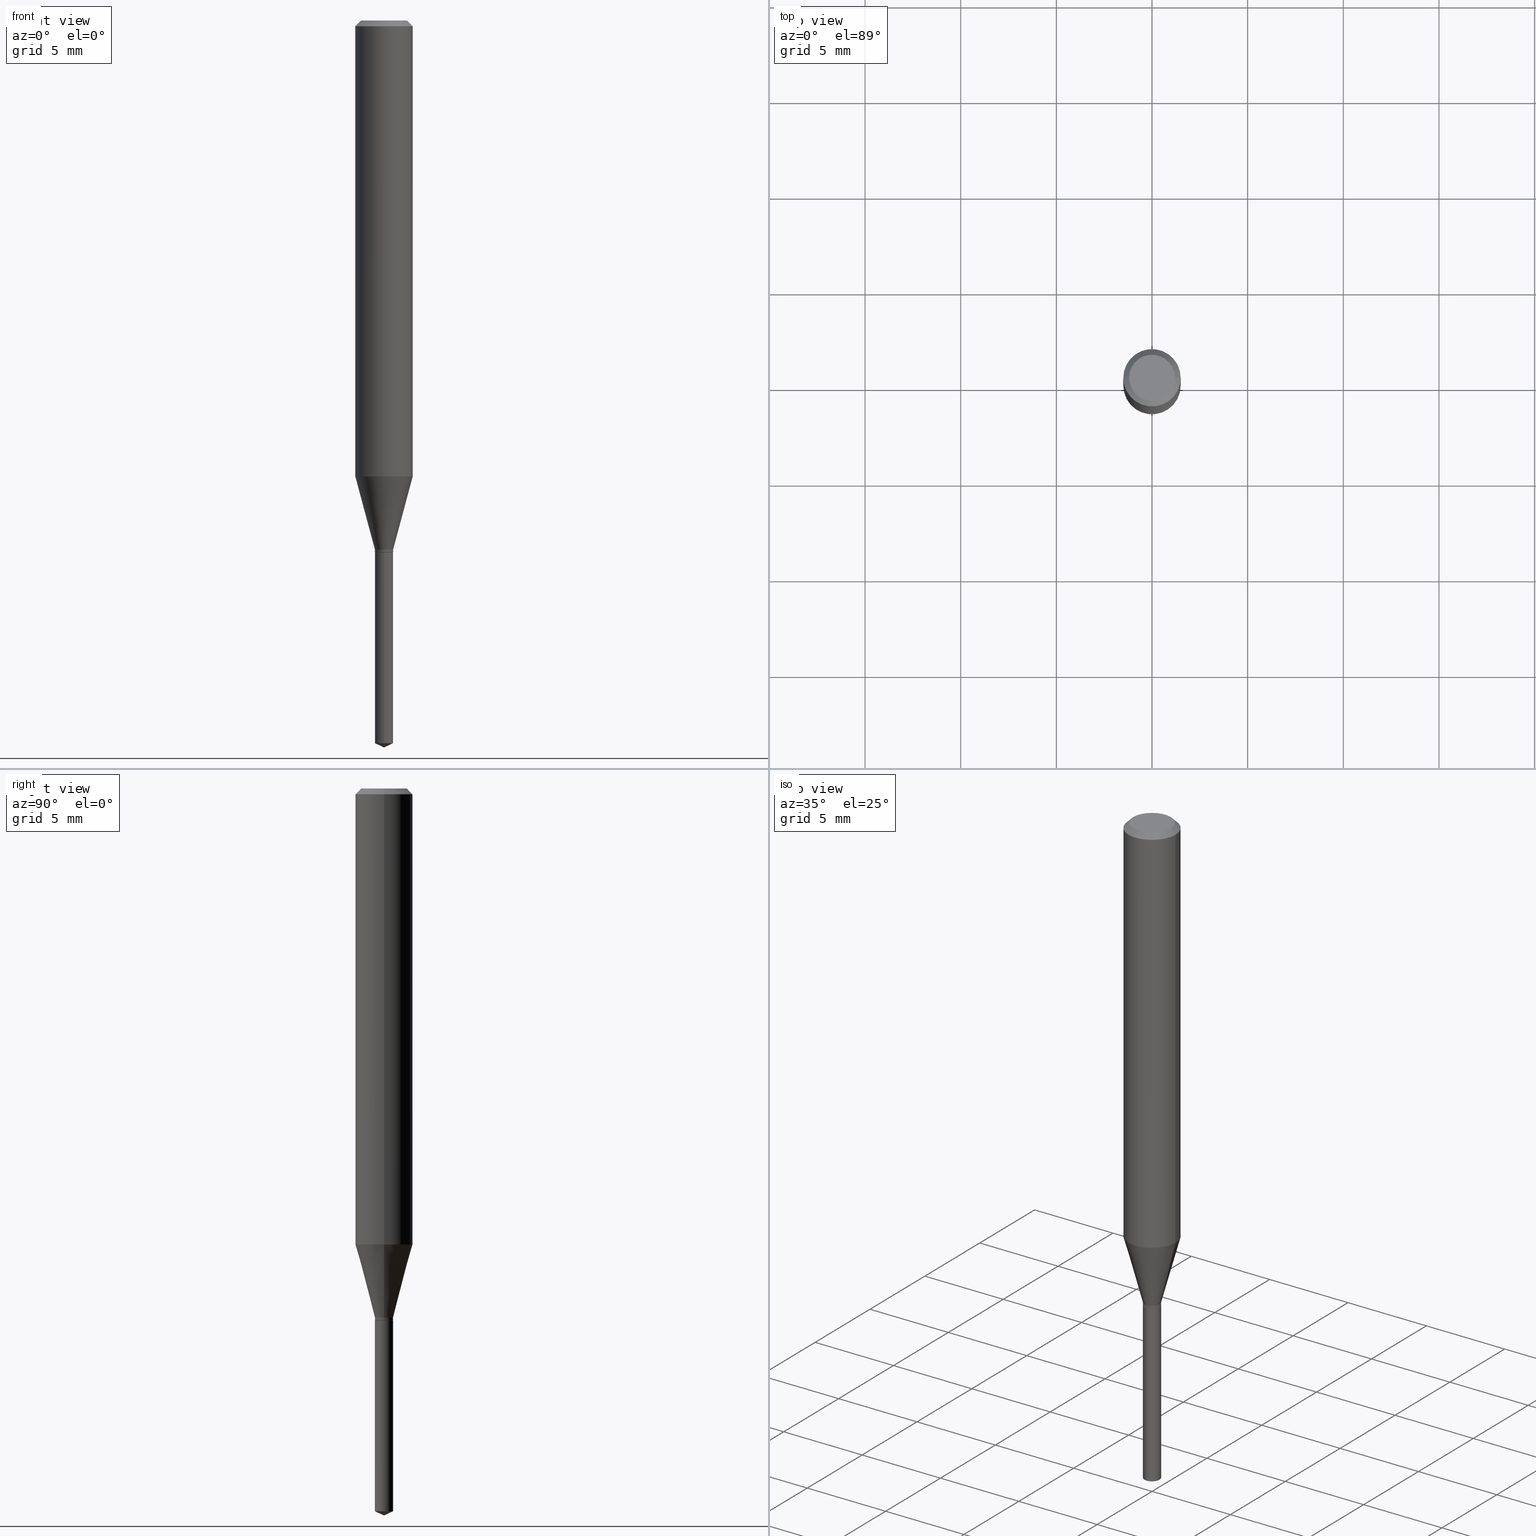
[diagram: canonical four-view strip — front | top / right | iso, engineering-drawing reading convention]
A machine part, canonical four-view strip (front | top / right | iso — engineering-drawing reading convention). The complete STEP part file that produces these views, byte-faithful:
ISO-10303-21;
HEADER;
FILE_DESCRIPTION (( 'STEP AP203' ),
    '1' );
FILE_NAME ('07474.STEP',
    '2024-04-23T21:50:55',
    ( '' ),
    ( '' ),
    'SwSTEP 2.0',
    'SolidWorks 2023',
    '' );
FILE_SCHEMA (( 'CONFIG_CONTROL_DESIGN' ));
ENDSEC;

DATA;
#1 = CONICAL_SURFACE ( 'NONE', #235, 0.05904999999999999832, 0.7853981633974452814 ) ;
#2 = EDGE_CURVE ( 'NONE', #237, #326, #397, .T. ) ;
#3 = APPROVAL_STATUS ( 'not_yet_approved' ) ;
#4 = CARTESIAN_POINT ( 'NONE',  ( 3.658668015054778287E-29, -5.223602213574301462E-15, -1.496099999999999985 ) ) ;
#5 = EDGE_CURVE ( 'NONE', #351, #132, #253, .T. ) ;
#6 = CARTESIAN_POINT ( 'NONE',  ( -1.305814020727064035E-16, -0.01870000000000382467, -1.094499999999999806 ) ) ;
#7 = ORIENTED_EDGE ( 'NONE', *, *, #121, .F. ) ;
#8 = CARTESIAN_POINT ( 'NONE',  ( -0.04724000000000000421, 3.504923541997677355E-16, -3.380025165670481712E-19 ) ) ;
#9 = CC_DESIGN_PERSON_AND_ORGANIZATION_ASSIGNMENT ( #441, #444, ( #412 ) ) ;
#10 = DIRECTION ( 'NONE',  ( -6.982962677686266711E-15, -1.000000000000000000, 3.520397390770453475E-15 ) ) ;
#11 = VERTEX_POINT ( 'NONE', #477 ) ;
#12 = EDGE_LOOP ( 'NONE', ( #140, #388 ) ) ;
#13 = AXIS2_PLACEMENT_3D ( 'NONE', #75, #320, #474 ) ;
#14 = ORIENTED_EDGE ( 'NONE', *, *, #56, .F. ) ;
#15 = ORIENTED_EDGE ( 'NONE', *, *, #152, .T. ) ;
#16 = VERTEX_POINT ( 'NONE', #368 ) ;
#17 = ORIENTED_EDGE ( 'NONE', *, *, #454, .T. ) ;
#18 = EDGE_CURVE ( 'NONE', #439, #326, #403, .T. ) ;
#19 = ORIENTED_EDGE ( 'NONE', *, *, #42, .T. ) ;
#20 = DIRECTION ( 'NONE',  ( 1.000000000000000000, -6.982962677686274599E-15, 0.000000000000000000 ) ) ;
#21 = ORIENTED_EDGE ( 'NONE', *, *, #56, .T. ) ;
#22 = VERTEX_POINT ( 'NONE', #27 ) ;
#23 =( NAMED_UNIT ( * ) SI_UNIT ( $, .STERADIAN. ) SOLID_ANGLE_UNIT ( ) );
#24 = DIRECTION ( 'NONE',  ( -2.445468806185136597E-29, 3.491481338843145583E-15, 1.000000000000000000 ) ) ;
#25 = FACE_OUTER_BOUND ( 'NONE', #12, .T. ) ;
#26 = ORIENTED_EDGE ( 'NONE', *, *, #296, .T. ) ;
#27 = CARTESIAN_POINT ( 'NONE',  ( 3.658667988020872822E-29, -5.223602213574301462E-15, -1.496099999999999985 ) ) ;
#28 = CC_DESIGN_PERSON_AND_ORGANIZATION_ASSIGNMENT ( #291, #73, ( #125 ) ) ;
#29 = DATE_AND_TIME ( #376, #318 ) ;
#30 = CIRCLE ( 'NONE', #271, 0.01870000000000000134 ) ;
#31 = CARTESIAN_POINT ( 'NONE',  ( 0.000000000000000000, 0.000000000000000000, 0.000000000000000000 ) ) ;
#32 = ORIENTED_EDGE ( 'NONE', *, *, #454, .F. ) ;
#33 = DATE_AND_TIME ( #107, #64 ) ;
#34 = CARTESIAN_POINT ( 'NONE',  ( -0.05904999999999999832, -1.239090694261562746E-15, -0.01181000000000006871 ) ) ;
#35 = EDGE_CURVE ( 'NONE', #357, #471, #332, .T. ) ;
#36 = FACE_OUTER_BOUND ( 'NONE', #325, .T. ) ;
#37 = CARTESIAN_POINT ( 'NONE',  ( 0.000000000000000000, 0.000000000000000000, 0.000000000000000000 ) ) ;
#38 = AXIS2_PLACEMENT_3D ( 'NONE', #467, #362, #20 ) ;
#39 = AXIS2_PLACEMENT_3D ( 'NONE', #31, #177, #67 ) ;
#40 = MANIFOLD_SOLID_BREP ( 'Body-Move/Copy2[1]', #187 ) ;
#41 = DIRECTION ( 'NONE',  ( 1.000000000000000000, -6.982962677686267499E-15, 0.000000000000000000 ) ) ;
#42 = EDGE_CURVE ( 'NONE', #326, #237, #52, .T. ) ;
#43 = CARTESIAN_POINT ( 'NONE',  ( -0.01870000000000000134, -3.677905815693212907E-15, -1.088899999999999979 ) ) ;
#44 = AXIS2_PLACEMENT_3D ( 'NONE', #126, #487, #41 ) ;
#45 = CARTESIAN_POINT ( 'NONE',  ( -9.261968845786000133E-28, 1.322362114038720264E-13, 37.87397874015748300 ) ) ;
#46 = EDGE_LOOP ( 'NONE', ( #394, #367, #385, #315 ) ) ;
#47 = DIRECTION ( 'NONE',  ( 1.000000000000000000, -6.982962677686266711E-15, 4.876176775795935793E-29 ) ) ;
#48 = ADVANCED_FACE ( 'NONE', ( #98 ), #316, .T. ) ;
#49 = DIRECTION ( 'NONE',  ( -2.445468806185136597E-29, 3.491481338843145583E-15, 1.000000000000000000 ) ) ;
#50 = DIRECTION ( 'NONE',  ( 2.445468806185136597E-29, -3.491481338843145583E-15, -1.000000000000000000 ) ) ;
#51 = EDGE_LOOP ( 'NONE', ( #267, #19, #130, #247 ) ) ;
#52 = CIRCLE ( 'NONE', #354, 0.01870000000000000134 ) ;
#53 = VECTOR ( 'NONE', #236, 39.37007874015747433 ) ;
#54 = ORIENTED_EDGE ( 'NONE', *, *, #5, .F. ) ;
#55 = CYLINDRICAL_SURFACE ( 'NONE', #94, 0.01870000000000000134 ) ;
#56 = EDGE_CURVE ( 'NONE', #132, #351, #163, .T. ) ;
#57 = VERTEX_POINT ( 'NONE', #108 ) ;
#58 =( LENGTH_UNIT ( ) NAMED_UNIT ( * ) SI_UNIT ( $, .METRE. ) );
#59 = ORIENTED_EDGE ( 'NONE', *, *, #442, .T. ) ;
#60 = APPROVAL ( #489, 'UNSPECIFIED' ) ;
#61 = ORIENTED_EDGE ( 'NONE', *, *, #188, .T. ) ;
#62 = AXIS2_PLACEMENT_3D ( 'NONE', #171, #374, #279 ) ;
#63 = CONICAL_SURFACE ( 'NONE', #339, 0.01820000000000000090, 0.7853981633974119747 ) ;
#64 = LOCAL_TIME ( 17, 50, 55.00000000000000000, #216 ) ;
#65 = VERTEX_POINT ( 'NONE', #77 ) ;
#66 = DIRECTION ( 'NONE',  ( 2.445470214571801836E-29, -3.491479321953280158E-15, -1.000000000000000000 ) ) ;
#67 = DIRECTION ( 'NONE',  ( 1.000000000000000000, -6.982962677686266711E-15, 4.876176775795935793E-29 ) ) ;
#68 = EDGE_LOOP ( 'NONE', ( #160, #196, #59, #204 ) ) ;
#69 = VERTEX_POINT ( 'NONE', #410 ) ;
#70 =( NAMED_UNIT ( * ) PLANE_ANGLE_UNIT ( ) SI_UNIT ( $, .RADIAN. ) );
#71 = FACE_OUTER_BOUND ( 'NONE', #51, .T. ) ;
#72 = EDGE_LOOP ( 'NONE', ( #427, #14, #124, #464 ) ) ;
#73 = PERSON_AND_ORGANIZATION_ROLE ( 'design_supplier' ) ;
#74 = AXIS2_PLACEMENT_3D ( 'NONE', #194, #272, #119 ) ;
#75 = CARTESIAN_POINT ( 'NONE',  ( 3.637342060700270399E-29, -5.193158884747879625E-15, -1.487380046792501576 ) ) ;
#76 = EDGE_CURVE ( 'NONE', #11, #65, #360, .T. ) ;
#77 = CARTESIAN_POINT ( 'NONE',  ( -1.305814020726967892E-16, -0.01870000000000519164, -1.487380046792501576 ) ) ;
#78 = PERSON_AND_ORGANIZATION ( #428, #371 ) ;
#79 = CARTESIAN_POINT ( 'NONE',  ( 0.05904999999999999832, -4.535783407291118600E-16, -0.01181000000000006871 ) ) ;
#80 = ADVANCED_FACE ( 'NONE', ( #25 ), #136, .F. ) ;
#81 = DIRECTION ( 'NONE',  ( -2.445470214571802116E-29, 3.491479321953280158E-15, 1.000000000000000000 ) ) ;
#82 = CARTESIAN_POINT ( 'NONE',  ( 0.000000000000000000, 0.000000000000000000, 0.000000000000000000 ) ) ;
#83 = CARTESIAN_POINT ( 'NONE',  ( 2.888098660104663328E-31, -4.123439461173779030E-17, -0.01181000000000006871 ) ) ;
#84 = AXIS2_PLACEMENT_3D ( 'NONE', #206, #49, #266 ) ;
#85 = CONICAL_SURFACE ( 'NONE', #345, 0.01870000000000000134, 0.2617993877991500740 ) ;
#86 = CIRCLE ( 'NONE', #200, 0.01820000000000000090 ) ;
#87 = DIRECTION ( 'NONE',  ( -2.445468806185136597E-29, 3.491481338843145583E-15, 1.000000000000000000 ) ) ;
#88 = EDGE_CURVE ( 'NONE', #357, #211, #115, .T. ) ;
#89 = CARTESIAN_POINT ( 'NONE',  ( -0.05904999999999999832, 3.711095515056362547E-16, -0.01181000000000006871 ) ) ;
#90 = VERTEX_POINT ( 'NONE', #181 ) ;
#91 = UNCERTAINTY_MEASURE_WITH_UNIT (LENGTH_MEASURE( 1.000000000000000082E-05 ), #415, 'distance_accuracy_value', 'NONE');
#92 = ORIENTED_EDGE ( 'NONE', *, *, #76, .F. ) ;
#93 = EDGE_CURVE ( 'NONE', #237, #357, #404, .T. ) ;
#94 = AXIS2_PLACEMENT_3D ( 'NONE', #203, #334, #112 ) ;
#95 = ADVANCED_FACE ( 'NONE', ( #167 ), #416, .T. ) ;
#96 = ORIENTED_EDGE ( 'NONE', *, *, #284, .F. ) ;
#97 = CARTESIAN_POINT ( 'NONE',  ( 0.05904999999999999832, -4.463468013801466955E-16, -0.01181000000000006871 ) ) ;
#98 = FACE_OUTER_BOUND ( 'NONE', #440, .T. ) ;
#99 = DIRECTION ( 'NONE',  ( 1.000000000000000000, -6.982962677686273810E-15, 0.000000000000000000 ) ) ;
#100 = CARTESIAN_POINT ( 'NONE',  ( 8.265746106709734507E-48, -1.180129479067563789E-33, -3.380025165646692144E-19 ) ) ;
#101 = CC_DESIGN_APPROVAL ( #395, ( #299 ) ) ;
#102 = CYLINDRICAL_SURFACE ( 'NONE', #424, 0.01870000000000000134 ) ;
#103 = CARTESIAN_POINT ( 'NONE',  ( 2.662870983054994996E-29, -3.801874029866301144E-15, -1.088899999999999979 ) ) ;
#104 = EDGE_LOOP ( 'NONE', ( #372, #390, #92 ) ) ;
#105 = CALENDAR_DATE ( 2024, 23, 4 ) ;
#106 = CARTESIAN_POINT ( 'NONE',  ( 0.01820000000000000090, -3.948516246097712966E-15, -1.094499999999999806 ) ) ;
#107 = CALENDAR_DATE ( 2024, 23, 4 ) ;
#108 = CARTESIAN_POINT ( 'NONE',  ( 1.328714915871751552E-16, 0.01869999999999617801, -1.094499999999999806 ) ) ;
#109 = PERSON_AND_ORGANIZATION ( #428, #371 ) ;
#110 = CIRCLE ( 'NONE', #317, 0.01820000000000000090 ) ;
#111 = COORDINATED_UNIVERSAL_TIME_OFFSET ( 5, 0, .BEHIND. ) ;
#112 = DIRECTION ( 'NONE',  ( -6.982962677686265922E-15, -1.000000000000000000, 0.000000000000000000 ) ) ;
#113 = COORDINATED_UNIVERSAL_TIME_OFFSET ( 5, 0, .BEHIND. ) ;
#114 = LINE ( 'NONE', #4, #391 ) ;
#115 = CIRCLE ( 'NONE', #62, 0.01870000000000000134 ) ;
#116 = AXIS2_PLACEMENT_3D ( 'NONE', #230, #426, #462 ) ;
#117 = ADVANCED_FACE ( 'NONE', ( #438 ), #102, .T. ) ;
#118 =( GEOMETRIC_REPRESENTATION_CONTEXT ( 3 ) GLOBAL_UNCERTAINTY_ASSIGNED_CONTEXT ( ( #91 ) ) GLOBAL_UNIT_ASSIGNED_CONTEXT ( ( #415, #70, #23 ) ) REPRESENTATION_CONTEXT ( 'NONE', 'WORKASPACE' ) );
#119 = DIRECTION ( 'NONE',  ( 1.000000000000000000, -6.982962677686267499E-15, 0.000000000000000000 ) ) ;
#120 = FACE_OUTER_BOUND ( 'NONE', #68, .T. ) ;
#121 = EDGE_CURVE ( 'NONE', #16, #237, #443, .T. ) ;
#122 = ADVANCED_FACE ( 'NONE', ( #71 ), #370, .T. ) ;
#123 = DIRECTION ( 'NONE',  ( -0.7071067811865453523, 2.468850131082234184E-15, -0.7071067811865496822 ) ) ;
#124 = ORIENTED_EDGE ( 'NONE', *, *, #222, .T. ) ;
#125 = PRODUCT_DEFINITION_FORMATION_WITH_SPECIFIED_SOURCE ( 'ANY', '', #412, .NOT_KNOWN. ) ;
#126 = CARTESIAN_POINT ( 'NONE',  ( 2.294612114893132862E-29, -3.276097964844067539E-15, -0.9383117499145957607 ) ) ;
#127 = FACE_OUTER_BOUND ( 'NONE', #159, .T. ) ;
#128 = ORIENTED_EDGE ( 'NONE', *, *, #465, .T. ) ;
#129 = ADVANCED_FACE ( 'NONE', ( #421 ), #1, .T. ) ;
#130 = ORIENTED_EDGE ( 'NONE', *, *, #93, .T. ) ;
#131 = EDGE_CURVE ( 'NONE', #311, #476, #228, .T. ) ;
#132 = VERTEX_POINT ( 'NONE', #8 ) ;
#133 = VECTOR ( 'NONE', #202, 39.37007874015748143 ) ;
#134 = ORIENTED_EDGE ( 'NONE', *, *, #337, .F. ) ;
#135 = DIRECTION ( 'NONE',  ( 0.7071067811865453523, -7.319954787623248157E-15, -0.7071067811865496822 ) ) ;
#136 = PLANE ( 'NONE',  #423 ) ;
#137 = ORIENTED_EDGE ( 'NONE', *, *, #149, .F. ) ;
#138 = DIRECTION ( 'NONE',  ( -6.328713451373374901E-15, -0.9063077870366492705, 0.4226182617407009956 ) ) ;
#139 = DIRECTION ( 'NONE',  ( -1.000000000000000000, 6.982962677686266711E-15, 0.000000000000000000 ) ) ;
#140 = ORIENTED_EDGE ( 'NONE', *, *, #229, .T. ) ;
#141 = ORIENTED_EDGE ( 'NONE', *, *, #152, .F. ) ;
#142 = AXIS2_PLACEMENT_3D ( 'NONE', #45, #305, #10 ) ;
#143 = DIRECTION ( 'NONE',  ( 1.000000000000000000, 0.000000000000000000, 0.000000000000000000 ) ) ;
#144 = LINE ( 'NONE', #286, #53 ) ;
#145 = CARTESIAN_POINT ( 'NONE',  ( 0.01870000000000000134, -3.932455431939034345E-15, -1.088899999999999979 ) ) ;
#146 = DATE_AND_TIME ( #445, #481 ) ;
#147 = FACE_OUTER_BOUND ( 'NONE', #468, .T. ) ;
#148 = CIRCLE ( 'NONE', #44, 0.05905000000000010935 ) ;
#149 = EDGE_CURVE ( 'NONE', #57, #69, #312, .T. ) ;
#150 = DIRECTION ( 'NONE',  ( -2.445470214571802396E-29, 3.491479321953280158E-15, 1.000000000000000000 ) ) ;
#151 = AXIS2_PLACEMENT_3D ( 'NONE', #82, #348, #47 ) ;
#152 = EDGE_CURVE ( 'NONE', #65, #69, #453, .T. ) ;
#153 = DIRECTION ( 'NONE',  ( -6.982962677686265922E-15, -1.000000000000000000, 0.000000000000000000 ) ) ;
#154 = ORIENTED_EDGE ( 'NONE', *, *, #88, .T. ) ;
#155 = PRODUCT_RELATED_PRODUCT_CATEGORY ( 'detail', '', ( #412 ) ) ;
#156 = CARTESIAN_POINT ( 'NONE',  ( 2.676565608369631794E-29, -3.821426325363822773E-15, -1.094499999999999806 ) ) ;
#157 = AXIS2_PLACEMENT_3D ( 'NONE', #103, #287, #331 ) ;
#158 = DIRECTION ( 'NONE',  ( -2.445470214571802396E-29, 3.491479321953280158E-15, 1.000000000000000000 ) ) ;
#159 = EDGE_LOOP ( 'NONE', ( #154, #26, #32, #306 ) ) ;
#160 = ORIENTED_EDGE ( 'NONE', *, *, #379, .F. ) ;
#161 = CC_DESIGN_PERSON_AND_ORGANIZATION_ASSIGNMENT ( #258, #248, ( #125 ) ) ;
#162 = LINE ( 'NONE', #97, #479 ) ;
#163 = CIRCLE ( 'NONE', #227, 0.04724000000000000421 ) ;
#164 = VECTOR ( 'NONE', #150, 39.37007874015748143 ) ;
#165 = DIRECTION ( 'NONE',  ( -2.445468806185136597E-29, 3.491481338843145583E-15, 1.000000000000000000 ) ) ;
#166 = LINE ( 'NONE', #322, #461 ) ;
#167 = FACE_OUTER_BOUND ( 'NONE', #313, .T. ) ;
#168 = ORIENTED_EDGE ( 'NONE', *, *, #42, .F. ) ;
#169 = APPLICATION_PROTOCOL_DEFINITION ( 'international standard', 'config_control_design', 1994, #411 ) ;
#170 = CARTESIAN_POINT ( 'NONE',  ( 3.637342060700270399E-29, -5.193158884747879625E-15, -1.487380046792501576 ) ) ;
#171 = CARTESIAN_POINT ( 'NONE',  ( 2.662870983054994996E-29, -3.801874029866301144E-15, -1.088899999999999979 ) ) ;
#172 = AXIS2_PLACEMENT_3D ( 'NONE', #250, #323, #139 ) ;
#173 = CARTESIAN_POINT ( 'NONE',  ( 0.01870000000000000134, -3.932455431939034345E-15, -1.088899999999999979 ) ) ;
#174 = AXIS2_PLACEMENT_3D ( 'NONE', #37, #478, #143 ) ;
#175 = ADVANCED_FACE ( 'NONE', ( #458 ), #265, .T. ) ;
#176 = LENGTH_MEASURE_WITH_UNIT ( LENGTH_MEASURE( 0.02539999999999999897 ), #58 );
#177 = DIRECTION ( 'NONE',  ( -2.445468806185136597E-29, 3.491481338843145583E-15, 1.000000000000000000 ) ) ;
#178 = ORIENTED_EDGE ( 'NONE', *, *, #275, .F. ) ;
#179 = APPROVAL_DATE_TIME ( #146, #60 ) ;
#180 = DIRECTION ( 'NONE',  ( -2.445468806185136597E-29, 3.491481338843145583E-15, 1.000000000000000000 ) ) ;
#181 = CARTESIAN_POINT ( 'NONE',  ( -0.05905000000000010935, -2.856522479377728046E-15, -0.9383117499145957607 ) ) ;
#182 = PERSON_AND_ORGANIZATION ( #428, #371 ) ;
#183 = APPROVAL_ROLE ( '' ) ;
#184 = CC_DESIGN_APPROVAL ( #241, ( #361 ) ) ;
#185 = CARTESIAN_POINT ( 'NONE',  ( 0.05905000000000005383, -4.123439461173744271E-16, 2.879382386107502672E-30 ) ) ;
#186 = CARTESIAN_POINT ( 'NONE',  ( 8.265746106709734507E-48, -1.180129479067563789E-33, -3.380025165646692144E-19 ) ) ;
#187 = CLOSED_SHELL ( 'NONE', ( #308, #433, #218, #117, #80 ) ) ;
#188 = EDGE_CURVE ( 'NONE', #476, #311, #205, .T. ) ;
#189 = ORIENTED_EDGE ( 'NONE', *, *, #398, .F. ) ;
#190 = CONICAL_SURFACE ( 'NONE', #470, 84.42940631927434936, 1.134464013796316006 ) ;
#191 = LINE ( 'NONE', #89, #356 ) ;
#192 = ORIENTED_EDGE ( 'NONE', *, *, #398, .T. ) ;
#193 = CC_DESIGN_DATE_AND_TIME_ASSIGNMENT ( #413, #340, ( #361 ) ) ;
#194 = CARTESIAN_POINT ( 'NONE',  ( 2.294612114893132862E-29, -3.276097964844067539E-15, -0.9383117499145957607 ) ) ;
#195 = DIRECTION ( 'NONE',  ( 1.000000000000000000, -6.982962677686266711E-15, 0.000000000000000000 ) ) ;
#196 = ORIENTED_EDGE ( 'NONE', *, *, #429, .T. ) ;
#197 = ORIENTED_EDGE ( 'NONE', *, *, #18, .F. ) ;
#198 = VECTOR ( 'NONE', #282, 39.37007874015748143 ) ;
#199 = CONICAL_SURFACE ( 'NONE', #301, 0.01870000000000000134, 0.2617993877991500740 ) ;
#200 = AXIS2_PLACEMENT_3D ( 'NONE', #251, #260, #259 ) ;
#201 = EDGE_CURVE ( 'NONE', #326, #211, #382, .T. ) ;
#202 = DIRECTION ( 'NONE',  ( -2.445468806185136877E-29, 3.491481338843145188E-15, 1.000000000000000000 ) ) ;
#203 = CARTESIAN_POINT ( 'NONE',  ( 2.676565608369631794E-29, -3.821426325363822773E-15, -1.094499999999999806 ) ) ;
#204 = ORIENTED_EDGE ( 'NONE', *, *, #131, .F. ) ;
#205 = CIRCLE ( 'NONE', #262, 0.05904999999999999832 ) ;
#206 = CARTESIAN_POINT ( 'NONE',  ( 2.676565608369631794E-29, -3.821426325363822773E-15, -1.094499999999999806 ) ) ;
#207 = ORIENTED_EDGE ( 'NONE', *, *, #249, .T. ) ;
#208 = CARTESIAN_POINT ( 'NONE',  ( 0.01870000000000000134, -1.305814020727332001E-16, 9.118450570738400409E-31 ) ) ;
#209 = ORIENTED_EDGE ( 'NONE', *, *, #188, .F. ) ;
#210 = APPROVAL_ROLE ( '' ) ;
#211 = VERTEX_POINT ( 'NONE', #43 ) ;
#212 = EDGE_LOOP ( 'NONE', ( #21, #396 ) ) ;
#213 = PERSON_AND_ORGANIZATION ( #428, #371 ) ;
#214 = ORIENTED_EDGE ( 'NONE', *, *, #442, .F. ) ;
#215 = CIRCLE ( 'NONE', #378, 0.01870000000000000134 ) ;
#216 = COORDINATED_UNIVERSAL_TIME_OFFSET ( 5, 0, .BEHIND. ) ;
#217 = CARTESIAN_POINT ( 'NONE',  ( 2.676565608369631794E-29, -3.821426325363822773E-15, -1.094499999999999806 ) ) ;
#218 = ADVANCED_FACE ( 'NONE', ( #347 ), #399, .T. ) ;
#219 = AXIS2_PLACEMENT_3D ( 'NONE', #446, #324, #246 ) ;
#220 = DIMENSIONAL_EXPONENTS ( 1.000000000000000000, 0.000000000000000000, 0.000000000000000000, 0.000000000000000000, 0.000000000000000000, 0.000000000000000000, 0.000000000000000000 ) ;
#221 = DIRECTION ( 'NONE',  ( -2.445468806185136597E-29, 3.491481338843145583E-15, 1.000000000000000000 ) ) ;
#222 = EDGE_CURVE ( 'NONE', #132, #311, #191, .T. ) ;
#223 = DIRECTION ( 'NONE',  ( 1.000000000000000000, -6.982962677686266711E-15, 4.876176775795935793E-29 ) ) ;
#224 = CARTESIAN_POINT ( 'NONE',  ( 0.000000000000000000, 0.000000000000000000, 0.000000000000000000 ) ) ;
#225 = DIRECTION ( 'NONE',  ( -6.982962677686266711E-15, -1.000000000000000000, 3.520397390770453475E-15 ) ) ;
#226 = DIRECTION ( 'NONE',  ( -2.445470214571802116E-29, 3.491479321953280158E-15, 1.000000000000000000 ) ) ;
#227 = AXIS2_PLACEMENT_3D ( 'NONE', #186, #307, #435 ) ;
#228 = CIRCLE ( 'NONE', #274, 0.05904999999999999832 ) ;
#229 = EDGE_CURVE ( 'NONE', #69, #57, #30, .T. ) ;
#230 = CARTESIAN_POINT ( 'NONE',  ( 4.132873053354867254E-48, -5.900647395337818946E-34, -1.690012582823346072E-19 ) ) ;
#231 = ORIENTED_EDGE ( 'NONE', *, *, #93, .F. ) ;
#232 = ADVANCED_FACE ( 'NONE', ( #127 ), #85, .T. ) ;
#233 = DIRECTION ( 'NONE',  ( 1.000000000000000000, -6.982962677686274599E-15, 0.000000000000000000 ) ) ;
#234 = CARTESIAN_POINT ( 'NONE',  ( -0.05905000000000005383, 4.195754854663395423E-16, -2.904631170795524694E-30 ) ) ;
#235 = AXIS2_PLACEMENT_3D ( 'NONE', #83, #50, #302 ) ;
#236 = DIRECTION ( 'NONE',  ( -0.2588190451025213501, 5.211531920934551042E-15, 0.9659258262890682012 ) ) ;
#237 = VERTEX_POINT ( 'NONE', #285 ) ;
#238 = ORIENTED_EDGE ( 'NONE', *, *, #201, .T. ) ;
#239 = ADVANCED_FACE ( 'NONE', ( #319 ), #199, .T. ) ;
#240 = ORIENTED_EDGE ( 'NONE', *, *, #337, .T. ) ;
#241 = APPROVAL ( #3, 'UNSPECIFIED' ) ;
#242 = CYLINDRICAL_SURFACE ( 'NONE', #39, 0.05905000000000005383 ) ;
#243 = DIRECTION ( 'NONE',  ( 1.000000000000000000, -6.982962677686266711E-15, 4.876185090822587894E-29 ) ) ;
#244 = CARTESIAN_POINT ( 'NONE',  ( 2.662870983054994996E-29, -3.801874029866301144E-15, -1.088899999999999979 ) ) ;
#245 = CARTESIAN_POINT ( 'NONE',  ( 2.676565608369631794E-29, -3.821426325363822773E-15, -1.094499999999999806 ) ) ;
#246 = DIRECTION ( 'NONE',  ( 1.000000000000000000, -6.982962677686265922E-15, 4.876176775795935793E-29 ) ) ;
#247 = ORIENTED_EDGE ( 'NONE', *, *, #358, .F. ) ;
#248 = PERSON_AND_ORGANIZATION_ROLE ( 'creator' ) ;
#249 = EDGE_CURVE ( 'NONE', #351, #476, #162, .T. ) ;
#250 = CARTESIAN_POINT ( 'NONE',  ( 2.888098660104663328E-31, -4.123439461173779030E-17, -0.01181000000000006871 ) ) ;
#251 = CARTESIAN_POINT ( 'NONE',  ( 2.676565608369631794E-29, -3.821426325363822773E-15, -1.094499999999999806 ) ) ;
#252 = COORDINATED_UNIVERSAL_TIME_OFFSET ( 5, 0, .BEHIND. ) ;
#253 = CIRCLE ( 'NONE', #261, 0.04724000000000000421 ) ;
#254 = CARTESIAN_POINT ( 'NONE',  ( 0.04724000000000000421, -3.852183633974369345E-16, -3.380025165621689721E-19 ) ) ;
#255 = AXIS2_PLACEMENT_3D ( 'NONE', #156, #226, #153 ) ;
#256 = DIRECTION ( 'NONE',  ( 6.439704144417030353E-15, 0.9063077870366521571, 0.4226182617406946673 ) ) ;
#257 = ADVANCED_FACE ( 'NONE', ( #278 ), #63, .T. ) ;
#258 = PERSON_AND_ORGANIZATION ( #428, #371 ) ;
#259 = DIRECTION ( 'NONE',  ( 1.000000000000000000, -6.982962677686273810E-15, 0.000000000000000000 ) ) ;
#260 = DIRECTION ( 'NONE',  ( -2.445468806185136597E-29, 3.491481338843145583E-15, 1.000000000000000000 ) ) ;
#261 = AXIS2_PLACEMENT_3D ( 'NONE', #100, #165, #243 ) ;
#262 = AXIS2_PLACEMENT_3D ( 'NONE', #344, #221, #383 ) ;
#263 = APPLICATION_CONTEXT ( 'configuration controlled 3d designs of mechanical parts and assemblies' ) ;
#264 = LOCAL_TIME ( 17, 50, 55.00000000000000000, #365 ) ;
#265 = CYLINDRICAL_SURFACE ( 'NONE', #417, 0.01870000000000000134 ) ;
#266 = DIRECTION ( 'NONE',  ( 1.000000000000000000, -6.982962677686273810E-15, 0.000000000000000000 ) ) ;
#267 = ORIENTED_EDGE ( 'NONE', *, *, #201, .F. ) ;
#268 = FACE_OUTER_BOUND ( 'NONE', #212, .T. ) ;
#269 = DIRECTION ( 'NONE',  ( -6.982962677686265922E-15, -1.000000000000000000, 0.000000000000000000 ) ) ;
#270 = ORIENTED_EDGE ( 'NONE', *, *, #2, .F. ) ;
#271 = AXIS2_PLACEMENT_3D ( 'NONE', #310, #448, #269 ) ;
#272 = DIRECTION ( 'NONE',  ( -2.445468806185136597E-29, 3.491481338843145583E-15, 1.000000000000000000 ) ) ;
#273 = ORIENTED_EDGE ( 'NONE', *, *, #379, .T. ) ;
#274 = AXIS2_PLACEMENT_3D ( 'NONE', #355, #349, #195 ) ;
#275 = EDGE_CURVE ( 'NONE', #22, #65, #166, .T. ) ;
#276 = ORIENTED_EDGE ( 'NONE', *, *, #121, .T. ) ;
#277 = DIRECTION ( 'NONE',  ( -2.445468806185136597E-29, 3.491481338843145583E-15, 1.000000000000000000 ) ) ;
#278 = FACE_OUTER_BOUND ( 'NONE', #393, .T. ) ;
#279 = DIRECTION ( 'NONE',  ( 1.000000000000000000, -6.982962677686274599E-15, 0.000000000000000000 ) ) ;
#280 = DIRECTION ( 'NONE',  ( -2.445470214571802116E-29, 3.491479321953280158E-15, 1.000000000000000000 ) ) ;
#281 = VECTOR ( 'NONE', #380, 39.37007874015748143 ) ;
#282 = DIRECTION ( 'NONE',  ( -0.7071067811865218156, 7.493145998870261075E-15, 0.7071067811865732189 ) ) ;
#283 = SECURITY_CLASSIFICATION_LEVEL ( 'unclassified' ) ;
#284 = EDGE_CURVE ( 'NONE', #65, #11, #215, .T. ) ;
#285 = CARTESIAN_POINT ( 'NONE',  ( 0.01870000000000000134, -3.950261986767134470E-15, -1.093999999999999861 ) ) ;
#286 = CARTESIAN_POINT ( 'NONE',  ( -0.01870000000000000134, -3.669002538279162844E-15, -1.088899999999999979 ) ) ;
#287 = DIRECTION ( 'NONE',  ( -2.445468806185136597E-29, 3.491481338843145583E-15, 1.000000000000000000 ) ) ;
#288 = DIRECTION ( 'NONE',  ( 0.2588190451025213501, 1.565188264969621968E-15, 0.9659258262890682012 ) ) ;
#289 = APPLICATION_PROTOCOL_DEFINITION ( 'international standard', 'config_control_design', 1994, #263 ) ;
#290 = DIRECTION ( 'NONE',  ( 1.000000000000000000, -6.982962677686273810E-15, 0.000000000000000000 ) ) ;
#291 = PERSON_AND_ORGANIZATION ( #428, #371 ) ;
#292 = AXIS2_PLACEMENT_3D ( 'NONE', #224, #304, #455 ) ;
#293 = CC_DESIGN_SECURITY_CLASSIFICATION ( #361, ( #125 ) ) ;
#294 = PERSON_AND_ORGANIZATION_ROLE ( 'classification_officer' ) ;
#295 = ADVANCED_BREP_SHAPE_REPRESENTATION ( '07474', ( #40, #377, #174 ), #118 ) ;
#296 = EDGE_CURVE ( 'NONE', #211, #90, #144, .T. ) ;
#297 = FACE_OUTER_BOUND ( 'NONE', #466, .T. ) ;
#298 = CALENDAR_DATE ( 2024, 23, 4 ) ;
#299 = PRODUCT_DEFINITION ( 'UNKNOWN', '', #125, #450 ) ;
#300 = CARTESIAN_POINT ( 'NONE',  ( 0.000000000000000000, 0.000000000000000000, 0.000000000000000000 ) ) ;
#301 = AXIS2_PLACEMENT_3D ( 'NONE', #244, #473, #366 ) ;
#302 = DIRECTION ( 'NONE',  ( -1.000000000000000000, 6.982962677686266711E-15, 0.000000000000000000 ) ) ;
#303 = LINE ( 'NONE', #386, #389 ) ;
#304 = DIRECTION ( 'NONE',  ( -2.445468806185136597E-29, 3.491481338843145583E-15, 1.000000000000000000 ) ) ;
#305 = DIRECTION ( 'NONE',  ( -2.445470214571802116E-29, 3.491479321953280158E-15, 1.000000000000000000 ) ) ;
#306 = ORIENTED_EDGE ( 'NONE', *, *, #35, .F. ) ;
#307 = DIRECTION ( 'NONE',  ( -2.445468806185136597E-29, 3.491481338843145583E-15, 1.000000000000000000 ) ) ;
#308 = ADVANCED_FACE ( 'NONE', ( #392 ), #55, .T. ) ;
#309 = VECTOR ( 'NONE', #364, 39.37007874015748143 ) ;
#310 = CARTESIAN_POINT ( 'NONE',  ( 2.676565608369631794E-29, -3.821426325363822773E-15, -1.094499999999999806 ) ) ;
#311 = VERTEX_POINT ( 'NONE', #34 ) ;
#312 = CIRCLE ( 'NONE', #255, 0.01870000000000000134 ) ;
#313 = EDGE_LOOP ( 'NONE', ( #54, #207, #61, #459 ) ) ;
#314 = ORIENTED_EDGE ( 'NONE', *, *, #284, .T. ) ;
#315 = ORIENTED_EDGE ( 'NONE', *, *, #429, .F. ) ;
#316 = CONICAL_SURFACE ( 'NONE', #84, 0.01820000000000000090, 0.7853981633974119747 ) ;
#317 = AXIS2_PLACEMENT_3D ( 'NONE', #341, #180, #290 ) ;
#318 = LOCAL_TIME ( 17, 50, 55.00000000000000000, #113 ) ;
#319 = FACE_OUTER_BOUND ( 'NONE', #46, .T. ) ;
#320 = DIRECTION ( 'NONE',  ( -2.445470214571802116E-29, 3.491479321953280158E-15, 1.000000000000000000 ) ) ;
#321 = EDGE_LOOP ( 'NONE', ( #189, #475, #15, #137 ) ) ;
#322 = CARTESIAN_POINT ( 'NONE',  ( 3.658664905062460986E-29, -5.223606628546217219E-15, -1.496099999999999985 ) ) ;
#323 = DIRECTION ( 'NONE',  ( 2.445468806185136597E-29, -3.491481338843145583E-15, -1.000000000000000000 ) ) ;
#324 = DIRECTION ( 'NONE',  ( -2.438088387897960049E-29, 3.491481338843145188E-15, 1.000000000000000000 ) ) ;
#325 = EDGE_LOOP ( 'NONE', ( #17, #273, #209, #214 ) ) ;
#326 = VERTEX_POINT ( 'NONE', #490 ) ;
#327 = APPROVAL_ROLE ( '' ) ;
#328 = DIRECTION ( 'NONE',  ( -6.982962677686265922E-15, -1.000000000000000000, 0.000000000000000000 ) ) ;
#329 = CIRCLE ( 'NONE', #157, 0.01870000000000000134 ) ;
#330 = DIRECTION ( 'NONE',  ( -2.445470214571802116E-29, 3.491479321953280158E-15, 1.000000000000000000 ) ) ;
#331 = DIRECTION ( 'NONE',  ( 1.000000000000000000, -6.982962677686274599E-15, 0.000000000000000000 ) ) ;
#332 = LINE ( 'NONE', #145, #460 ) ;
#333 = DATE_AND_TIME ( #105, #264 ) ;
#334 = DIRECTION ( 'NONE',  ( -2.445470214571802116E-29, 3.491479321953280158E-15, 1.000000000000000000 ) ) ;
#335 = ORIENTED_EDGE ( 'NONE', *, *, #2, .T. ) ;
#336 = APPROVAL_DATE_TIME ( #33, #395 ) ;
#337 = EDGE_CURVE ( 'NONE', #439, #16, #110, .T. ) ;
#338 = PERSON_AND_ORGANIZATION_ROLE ( 'creator' ) ;
#339 = AXIS2_PLACEMENT_3D ( 'NONE', #434, #24, #99 ) ;
#340 = DATE_TIME_ROLE ( 'classification_date' ) ;
#341 = CARTESIAN_POINT ( 'NONE',  ( 2.676565608369631794E-29, -3.821426325363822773E-15, -1.094499999999999806 ) ) ;
#342 = CARTESIAN_POINT ( 'NONE',  ( 0.05905000000000010935, -3.688441910961442459E-15, -0.9383117499145957607 ) ) ;
#343 = ADVANCED_FACE ( 'NONE', ( #36 ), #242, .T. ) ;
#344 = CARTESIAN_POINT ( 'NONE',  ( 2.888098660104663328E-31, -4.123439461173779030E-17, -0.01181000000000006871 ) ) ;
#345 = AXIS2_PLACEMENT_3D ( 'NONE', #425, #87, #387 ) ;
#346 = LOCAL_TIME ( 17, 50, 55.00000000000000000, #111 ) ;
#347 = FACE_OUTER_BOUND ( 'NONE', #104, .T. ) ;
#348 = DIRECTION ( 'NONE',  ( -2.445468806185136597E-29, 3.491481338843145583E-15, 1.000000000000000000 ) ) ;
#349 = DIRECTION ( 'NONE',  ( -2.445468806185136597E-29, 3.491481338843145583E-15, 1.000000000000000000 ) ) ;
#350 = EDGE_LOOP ( 'NONE', ( #314, #192, #469, #141 ) ) ;
#351 = VERTEX_POINT ( 'NONE', #254 ) ;
#352 = EDGE_LOOP ( 'NONE', ( #335, #238, #431, #231 ) ) ;
#353 = DIRECTION ( 'NONE',  ( -2.445468806185136877E-29, 3.491481338843145188E-15, 1.000000000000000000 ) ) ;
#354 = AXIS2_PLACEMENT_3D ( 'NONE', #449, #277, #233 ) ;
#355 = CARTESIAN_POINT ( 'NONE',  ( 2.888098660104663328E-31, -4.123439461173779030E-17, -0.01181000000000006871 ) ) ;
#356 = VECTOR ( 'NONE', #123, 39.37007874015748143 ) ;
#357 = VERTEX_POINT ( 'NONE', #173 ) ;
#358 = EDGE_CURVE ( 'NONE', #211, #357, #329, .T. ) ;
#359 = ORIENTED_EDGE ( 'NONE', *, *, #18, .T. ) ;
#360 = CIRCLE ( 'NONE', #13, 0.01870000000000000134 ) ;
#361 = SECURITY_CLASSIFICATION ( '', '', #283 ) ;
#362 = DIRECTION ( 'NONE',  ( -2.445468806185136597E-29, 3.491481338843145583E-15, 1.000000000000000000 ) ) ;
#363 = ADVANCED_FACE ( 'NONE', ( #147 ), #483, .F. ) ;
#364 = DIRECTION ( 'NONE',  ( -2.445468806185136877E-29, 3.491481338843145188E-15, 1.000000000000000000 ) ) ;
#365 = COORDINATED_UNIVERSAL_TIME_OFFSET ( 5, 0, .BEHIND. ) ;
#366 = DIRECTION ( 'NONE',  ( 1.000000000000000000, -6.982962677686274599E-15, 0.000000000000000000 ) ) ;
#367 = ORIENTED_EDGE ( 'NONE', *, *, #358, .T. ) ;
#368 = CARTESIAN_POINT ( 'NONE',  ( 0.01820000000000000090, -3.948516246097712966E-15, -1.094499999999999806 ) ) ;
#369 = VECTOR ( 'NONE', #353, 39.37007874015748143 ) ;
#370 = CYLINDRICAL_SURFACE ( 'NONE', #292, 0.01870000000000000134 ) ;
#371 = ORGANIZATION ( 'UNSPECIFIED', 'UNSPECIFIED', '' ) ;
#372 = ORIENTED_EDGE ( 'NONE', *, *, #465, .F. ) ;
#373 = PERSON_AND_ORGANIZATION ( #428, #371 ) ;
#374 = DIRECTION ( 'NONE',  ( -2.445468806185136597E-29, 3.491481338843145583E-15, 1.000000000000000000 ) ) ;
#375 = MECHANICAL_CONTEXT ( 'NONE', #263, 'mechanical' ) ;
#376 = CALENDAR_DATE ( 2024, 23, 4 ) ;
#377 = MANIFOLD_SOLID_BREP ( 'Body-Move/Copy2[2]', #409 ) ;
#378 = AXIS2_PLACEMENT_3D ( 'NONE', #170, #280, #328 ) ;
#379 = EDGE_CURVE ( 'NONE', #90, #311, #432, .T. ) ;
#380 = DIRECTION ( 'NONE',  ( -2.445468806185136877E-29, 3.491481338843145188E-15, 1.000000000000000000 ) ) ;
#381 = PLANE ( 'NONE',  #116 ) ;
#382 = LINE ( 'NONE', #463, #281 ) ;
#383 = DIRECTION ( 'NONE',  ( 1.000000000000000000, -6.982962677686266711E-15, 0.000000000000000000 ) ) ;
#384 = ADVANCED_FACE ( 'NONE', ( #268 ), #381, .F. ) ;
#385 = ORIENTED_EDGE ( 'NONE', *, *, #35, .T. ) ;
#386 = CARTESIAN_POINT ( 'NONE',  ( 1.328714915871654916E-16, 0.01869999999999617801, -1.094499999999999806 ) ) ;
#387 = DIRECTION ( 'NONE',  ( 1.000000000000000000, -6.982962677686274599E-15, 0.000000000000000000 ) ) ;
#388 = ORIENTED_EDGE ( 'NONE', *, *, #149, .T. ) ;
#389 = VECTOR ( 'NONE', #158, 39.37007874015748143 ) ;
#390 = ORIENTED_EDGE ( 'NONE', *, *, #275, .T. ) ;
#391 = VECTOR ( 'NONE', #256, 39.37007874015748854 ) ;
#392 = FACE_OUTER_BOUND ( 'NONE', #350, .T. ) ;
#393 = EDGE_LOOP ( 'NONE', ( #197, #240, #276, #168 ) ) ;
#394 = ORIENTED_EDGE ( 'NONE', *, *, #296, .F. ) ;
#395 = APPROVAL ( #406, 'UNSPECIFIED' ) ;
#396 = ORIENTED_EDGE ( 'NONE', *, *, #5, .T. ) ;
#397 = CIRCLE ( 'NONE', #38, 0.01870000000000000134 ) ;
#398 = EDGE_CURVE ( 'NONE', #11, #57, #303, .T. ) ;
#399 = CONICAL_SURFACE ( 'NONE', #142, 84.42940631927434936, 1.134464013796316006 ) ;
#400 = APPROVAL_PERSON_ORGANIZATION ( #182, #60, #183 ) ;
#401 = DIRECTION ( 'NONE',  ( 6.982962677686265922E-15, 1.000000000000000000, -3.491479321953280158E-15 ) ) ;
#402 = ORIENTED_EDGE ( 'NONE', *, *, #472, .T. ) ;
#403 = LINE ( 'NONE', #484, #198 ) ;
#404 = LINE ( 'NONE', #208, #309 ) ;
#405 = ORIENTED_EDGE ( 'NONE', *, *, #472, .F. ) ;
#406 = APPROVAL_STATUS ( 'not_yet_approved' ) ;
#407 = DIRECTION ( 'NONE',  ( 0.7071067811865218156, -2.468850131081987665E-15, 0.7071067811865732189 ) ) ;
#408 = CC_DESIGN_PERSON_AND_ORGANIZATION_ASSIGNMENT ( #373, #338, ( #299 ) ) ;
#409 = CLOSED_SHELL ( 'NONE', ( #48, #95, #343, #232, #175, #122, #239, #420, #129, #384, #363, #257 ) ) ;
#410 = CARTESIAN_POINT ( 'NONE',  ( -1.305814020727064035E-16, -0.01870000000000382467, -1.094499999999999806 ) ) ;
#411 = APPLICATION_CONTEXT ( 'configuration controlled 3d designs of mechanical parts and assemblies' ) ;
#412 = PRODUCT ( '07474', '07474', '', ( #375 ) ) ;
#413 = DATE_AND_TIME ( #298, #346 ) ;
#414 = LINE ( 'NONE', #185, #133 ) ;
#415 =( CONVERSION_BASED_UNIT ( 'INCH', #176 ) LENGTH_UNIT ( ) NAMED_UNIT ( #220 ) );
#416 = CONICAL_SURFACE ( 'NONE', #172, 0.05904999999999999832, 0.7853981633974452814 ) ;
#417 = AXIS2_PLACEMENT_3D ( 'NONE', #300, #419, #223 ) ;
#418 = CARTESIAN_POINT ( 'NONE',  ( -9.261968845786000133E-28, 1.322362114038720264E-13, 37.87397874015748300 ) ) ;
#419 = DIRECTION ( 'NONE',  ( -2.445468806185136597E-29, 3.491481338843145583E-15, 1.000000000000000000 ) ) ;
#420 = ADVANCED_FACE ( 'NONE', ( #120 ), #422, .T. ) ;
#421 = FACE_OUTER_BOUND ( 'NONE', #72, .T. ) ;
#422 = CYLINDRICAL_SURFACE ( 'NONE', #151, 0.05905000000000005383 ) ;
#423 = AXIS2_PLACEMENT_3D ( 'NONE', #217, #66, #401 ) ;
#424 = AXIS2_PLACEMENT_3D ( 'NONE', #245, #330, #482 ) ;
#425 = CARTESIAN_POINT ( 'NONE',  ( 2.662870983054994996E-29, -3.801874029866301144E-15, -1.088899999999999979 ) ) ;
#426 = DIRECTION ( 'NONE',  ( 2.438088387897960049E-29, -3.491481338843145188E-15, -1.000000000000000000 ) ) ;
#427 = ORIENTED_EDGE ( 'NONE', *, *, #249, .F. ) ;
#428 = PERSON ( 'UNSPECIFIED', 'UNSPECIFIED', 'UNSPECIFIED', ('UNSPECIFIED'), ('UNSPECIFIED'), ('UNSPECIFIED') ) ;
#429 = EDGE_CURVE ( 'NONE', #90, #471, #430, .T. ) ;
#430 = CIRCLE ( 'NONE', #74, 0.05905000000000010935 ) ;
#431 = ORIENTED_EDGE ( 'NONE', *, *, #88, .F. ) ;
#432 = LINE ( 'NONE', #234, #369 ) ;
#433 = ADVANCED_FACE ( 'NONE', ( #297 ), #190, .T. ) ;
#434 = CARTESIAN_POINT ( 'NONE',  ( 2.676565608369631794E-29, -3.821426325363822773E-15, -1.094499999999999806 ) ) ;
#435 = DIRECTION ( 'NONE',  ( 1.000000000000000000, -6.982962677686266711E-15, 4.876185090822587894E-29 ) ) ;
#436 = CC_DESIGN_APPROVAL ( #60, ( #125 ) ) ;
#437 = APPROVAL_PERSON_ORGANIZATION ( #109, #241, #210 ) ;
#438 = FACE_OUTER_BOUND ( 'NONE', #321, .T. ) ;
#439 = VERTEX_POINT ( 'NONE', #447 ) ;
#440 = EDGE_LOOP ( 'NONE', ( #402, #359, #270, #7 ) ) ;
#441 = PERSON_AND_ORGANIZATION ( #428, #371 ) ;
#442 = EDGE_CURVE ( 'NONE', #471, #476, #414, .T. ) ;
#443 = LINE ( 'NONE', #106, #451 ) ;
#444 = PERSON_AND_ORGANIZATION_ROLE ( 'design_owner' ) ;
#445 = CALENDAR_DATE ( 2024, 23, 4 ) ;
#446 = CARTESIAN_POINT ( 'NONE',  ( 2.676565608369631794E-29, -3.821426325363822773E-15, -1.094499999999999806 ) ) ;
#447 = CARTESIAN_POINT ( 'NONE',  ( -0.01820000000000000090, -3.689458320281373381E-15, -1.094499999999999806 ) ) ;
#448 = DIRECTION ( 'NONE',  ( -2.445470214571802116E-29, 3.491479321953280158E-15, 1.000000000000000000 ) ) ;
#449 = CARTESIAN_POINT ( 'NONE',  ( 2.675342873966538993E-29, -3.819680584694400481E-15, -1.093999999999999861 ) ) ;
#450 = DESIGN_CONTEXT ( 'detailed design', #411, 'design' ) ;
#451 = VECTOR ( 'NONE', #407, 39.37007874015748143 ) ;
#452 = APPROVAL_PERSON_ORGANIZATION ( #213, #395, #327 ) ;
#453 = LINE ( 'NONE', #6, #164 ) ;
#454 = EDGE_CURVE ( 'NONE', #471, #90, #148, .T. ) ;
#455 = DIRECTION ( 'NONE',  ( 1.000000000000000000, -6.982962677686266711E-15, 4.876176775795935793E-29 ) ) ;
#456 = CC_DESIGN_PERSON_AND_ORGANIZATION_ASSIGNMENT ( #78, #294, ( #361 ) ) ;
#457 = SHAPE_DEFINITION_REPRESENTATION ( #486, #295 ) ;
#458 = FACE_OUTER_BOUND ( 'NONE', #352, .T. ) ;
#459 = ORIENTED_EDGE ( 'NONE', *, *, #222, .F. ) ;
#460 = VECTOR ( 'NONE', #288, 39.37007874015747433 ) ;
#461 = VECTOR ( 'NONE', #138, 39.37007874015748143 ) ;
#462 = DIRECTION ( 'NONE',  ( -1.000000000000000000, 6.982962677686265922E-15, -4.876176775795935793E-29 ) ) ;
#463 = CARTESIAN_POINT ( 'NONE',  ( -0.01870000000000000134, 1.328714915871387443E-16, -9.198408618776675202E-31 ) ) ;
#464 = ORIENTED_EDGE ( 'NONE', *, *, #131, .T. ) ;
#465 = EDGE_CURVE ( 'NONE', #22, #11, #114, .T. ) ;
#466 = EDGE_LOOP ( 'NONE', ( #178, #128, #96 ) ) ;
#467 = CARTESIAN_POINT ( 'NONE',  ( 2.675342873966538993E-29, -3.819680584694400481E-15, -1.093999999999999861 ) ) ;
#468 = EDGE_LOOP ( 'NONE', ( #405, #134 ) ) ;
#469 = ORIENTED_EDGE ( 'NONE', *, *, #229, .F. ) ;
#470 = AXIS2_PLACEMENT_3D ( 'NONE', #418, #81, #225 ) ;
#471 = VERTEX_POINT ( 'NONE', #342 ) ;
#472 = EDGE_CURVE ( 'NONE', #16, #439, #86, .T. ) ;
#473 = DIRECTION ( 'NONE',  ( -2.445468806185136597E-29, 3.491481338843145583E-15, 1.000000000000000000 ) ) ;
#474 = DIRECTION ( 'NONE',  ( -6.982962677686265922E-15, -1.000000000000000000, 0.000000000000000000 ) ) ;
#475 = ORIENTED_EDGE ( 'NONE', *, *, #76, .T. ) ;
#476 = VERTEX_POINT ( 'NONE', #79 ) ;
#477 = CARTESIAN_POINT ( 'NONE',  ( 1.328714915871750812E-16, 0.01869999999999480758, -1.487380046792501576 ) ) ;
#478 = DIRECTION ( 'NONE',  ( 0.000000000000000000, 0.000000000000000000, 1.000000000000000000 ) ) ;
#479 = VECTOR ( 'NONE', #135, 39.37007874015748143 ) ;
#480 = CC_DESIGN_DATE_AND_TIME_ASSIGNMENT ( #29, #488, ( #299 ) ) ;
#481 = LOCAL_TIME ( 17, 50, 55.00000000000000000, #252 ) ;
#482 = DIRECTION ( 'NONE',  ( -6.982962677686265922E-15, -1.000000000000000000, 0.000000000000000000 ) ) ;
#483 = PLANE ( 'NONE',  #219 ) ;
#484 = CARTESIAN_POINT ( 'NONE',  ( -0.01820000000000000090, -3.692107547455483794E-15, -1.094499999999999806 ) ) ;
#485 = APPROVAL_DATE_TIME ( #333, #241 ) ;
#486 = PRODUCT_DEFINITION_SHAPE ( 'NONE', 'NONE',  #299 ) ;
#487 = DIRECTION ( 'NONE',  ( -2.445468806185136597E-29, 3.491481338843145583E-15, 1.000000000000000000 ) ) ;
#488 = DATE_TIME_ROLE ( 'creation_date' ) ;
#489 = APPROVAL_STATUS ( 'not_yet_approved' ) ;
#490 = CARTESIAN_POINT ( 'NONE',  ( -0.01870000000000000134, -3.677905815693212907E-15, -1.093999999999999861 ) ) ;
ENDSEC;
END-ISO-10303-21;
